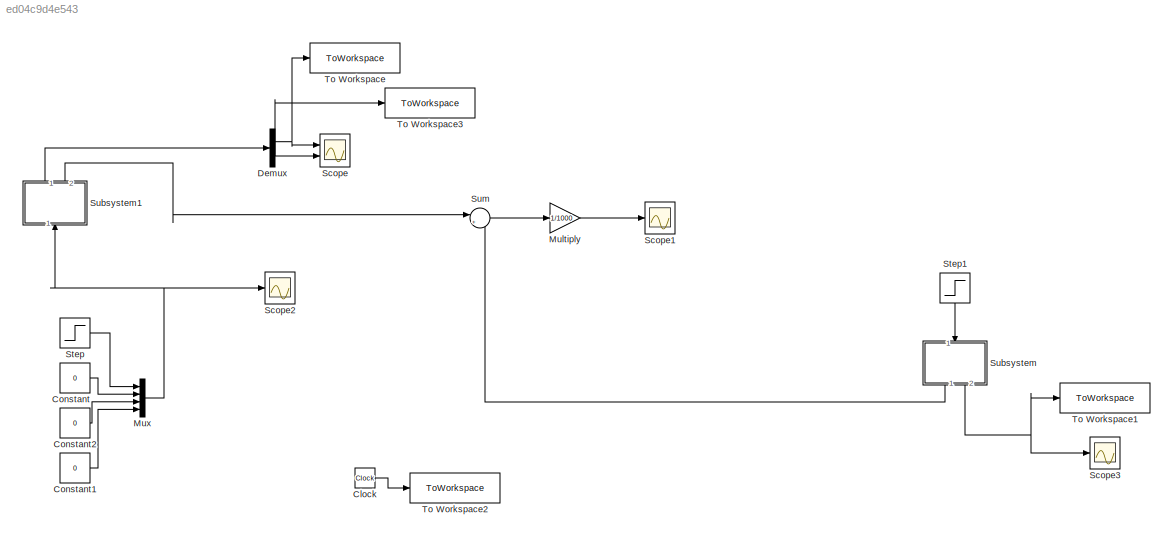
MODEL slx_ed04c9d4e543
KIND model
CONFIG AbsTol = auto
CONFIG EnableMultiTasking = off
CONFIG FixedStep = auto
CONFIG MaxStep = auto
CONFIG MinStep = auto
CONFIG RelTol = 1e-3
CONFIG SampleTimeConstraint = Unconstrained
CONFIG SolverName = ode45
CONFIG StartTime = 0.0
CONFIG StopTime = 5
BLOCK [Clock] Clock
BLOCK [Constant] Constant
  Value = 0
BLOCK [Constant] Constant1
  Value = 0
BLOCK [Constant] Constant2
  Value = 0
BLOCK [Demux] Demux
  Outputs = 2
  Ports = [1, 2]
BLOCK [Gain] Multiply
  Gain = 1/1000
BLOCK [Mux] Mux
  DisplayOption = bar
  Ports = [4, 1]
BLOCK [Scope] Scope
  Floating = off
  NumInputPorts = 2
  Ports = [2]
  ScopeSpecificationString = Simulink.scopes.TimeScopeBlockCfg('CurrentConfiguration', extmgr.ConfigurationSet(extmgr.Configuration('Core','General UI',true),extmgr.Configuration('Core','Source UI',true),extmgr.Configuration('Sources','WiredSimulink',true),extmgr.Configuration('Visuals','Time Domain',true,'SerializedDisplays',{struct('MinYLimReal','-0.1967','MaxYLimReal','1.17696','YLabelReal','','MinYLimMag','0.00000','MaxYL...<+2074ch>
BLOCK [Scope] Scope1
  Floating = off
  NumInputPorts = 1
  Ports = [1]
  ScopeSpecificationString = Simulink.scopes.TimeScopeBlockCfg('CurrentConfiguration', extmgr.ConfigurationSet(extmgr.Configuration('Core','General UI',true),extmgr.Configuration('Core','Source UI',true),extmgr.Configuration('Sources','WiredSimulink',true,'DataLoggingVariableName','ScopeData1'),extmgr.Configuration('Visuals','Time Domain',true,'SerializedDisplays',{struct('MinYLimReal','-5.26045','MaxYLimReal','1.7719','YLabe...<+1394ch>
BLOCK [Scope] Scope2
  Floating = off
  NumInputPorts = 1
  Ports = [1]
  ScopeSpecificationString = Simulink.scopes.TimeScopeBlockCfg('CurrentConfiguration', extmgr.ConfigurationSet(extmgr.Configuration('Core','General UI',true),extmgr.Configuration('Core','Source UI',true),extmgr.Configuration('Sources','WiredSimulink',true,'DataLoggingVariableName','ScopeData1'),extmgr.Configuration('Visuals','Time Domain',true),extmgr.Configuration('Tools','Plot Navigation',true),extmgr.Configuration('Tools',...<+40ch>
BLOCK [Scope] Scope3
  Floating = off
  NumInputPorts = 1
  Ports = [1]
  ScopeSpecificationString = Simulink.scopes.TimeScopeBlockCfg('CurrentConfiguration', extmgr.ConfigurationSet(extmgr.Configuration('Core','General UI',true),extmgr.Configuration('Core','Source UI',true),extmgr.Configuration('Sources','WiredSimulink',true,'DataLoggingVariableName','ScopeData2'),extmgr.Configuration('Visuals','Time Domain',true,'SerializedDisplays',{struct('MinYLimReal','-0.15065','MaxYLimReal','1.35585','YLab...<+1393ch>
BLOCK [Step] Step
  After = X_req
  SampleTime = 0
  Time = 2
BLOCK [Step] Step1
  After = Theta_req
  NameLocation = left
  SampleTime = 0
  Time = 0
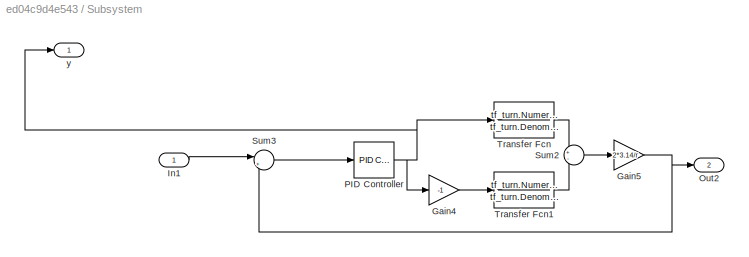
BLOCK [SubSystem] Subsystem
  NameLocation = left
  Ports = [1, 2]
  RequestExecContextInheritance = off
BLOCK [Gain] Subsystem/Gain4
  Gain = -1
BLOCK [Gain] Subsystem/Gain5
  Gain = 2*3.14/r
BLOCK [Inport] Subsystem/In1
BLOCK [Outport] Subsystem/Out2
  Port = 2
BLOCK [Reference] Subsystem/PID Controller  REF=pid_lib/PID Controller
  Ports = [1, 1]
  SourceBlock = pid_lib/PID Controller
  SourceProductBaseCode = SL
  SourceType = PID 1dof
BLOCK [Sum] Subsystem/Sum2
  Inputs = +-
  Ports = [2, 1]
BLOCK [Sum] Subsystem/Sum3
  Inputs = |+-
  Ports = [2, 1]
BLOCK [TransferFcn] Subsystem/Transfer Fcn
  Denominator = tf_turn.Denominator{1,1}
  Numerator = tf_turn.Numerator{1,1}
BLOCK [TransferFcn] Subsystem/Transfer Fcn1
  Denominator = tf_turn.Denominator{1,1}
  Numerator = tf_turn.Numerator{1,1}
BLOCK [Outport] Subsystem/y
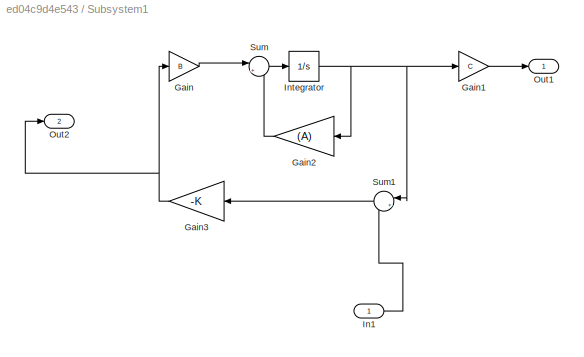
BLOCK [SubSystem] Subsystem1
  NameLocation = right
  Ports = [1, 2]
  RequestExecContextInheritance = off
BLOCK [Gain] Subsystem1/Gain
  Gain = B
  Multiplication = Matrix(K*u)
BLOCK [Gain] Subsystem1/Gain1
  Gain = C
  Multiplication = Matrix(K*u)
BLOCK [Gain] Subsystem1/Gain2
  Gain = (A)
  Multiplication = Matrix(K*u)
  NameLocation = top
BLOCK [Gain] Subsystem1/Gain3
  Gain = -K
  Multiplication = Matrix(K*u)
  NameLocation = top
BLOCK [Inport] Subsystem1/In1
BLOCK [Integrator] Subsystem1/Integrator
  InitialCondition = X0
  Ports = [1, 1]
BLOCK [Outport] Subsystem1/Out1
BLOCK [Outport] Subsystem1/Out2
  Port = 2
BLOCK [Sum] Subsystem1/Sum
  Inputs = |++
  Ports = [2, 1]
BLOCK [Sum] Subsystem1/Sum1
  Inputs = |+-
  NameLocation = top
  Ports = [2, 1]
BLOCK [Sum] Sum
  Inputs = |++
  Ports = [2, 1]
BLOCK [ToWorkspace] To Workspace
  FixptAsFi = on
  MaxDataPoints = inf
  Ports = [1]
  SampleTime = -1
  SaveFormat = Timeseries
  VariableName = R_Pos
BLOCK [ToWorkspace] To Workspace1
  FixptAsFi = on
  MaxDataPoints = inf
  Ports = [1]
  SampleTime = -1
  SaveFormat = Timeseries
  VariableName = Theta_Pos
BLOCK [ToWorkspace] To Workspace2
  FixptAsFi = on
  MaxDataPoints = inf
  Ports = [1]
  SampleTime = -1
  SaveFormat = Timeseries
  VariableName = t
BLOCK [ToWorkspace] To Workspace3
  FixptAsFi = on
  MaxDataPoints = inf
  Ports = [1]
  SampleTime = -1
  SaveFormat = Timeseries
  VariableName = angle
LINE Clock:1 -> To Workspace2:1
LINE Constant1:1 -> Mux:4
LINE Constant2:1 -> Mux:3
LINE Constant:1 -> Mux:2
NET Demux:1 -> Scope:1, To Workspace:1
NET Demux:2 -> Scope:2, To Workspace3:1
LINE Multiply:1 -> Scope1:1
NET Mux:1 -> Scope2:1, Subsystem1:1
LINE Step1:1 -> Subsystem:1
LINE Step:1 -> Mux:1
LINE Subsystem/Gain4:1 -> Subsystem/Transfer Fcn1:1
NET Subsystem/Gain5:1 -> Subsystem/Out2:1, Subsystem/Sum3:2
LINE Subsystem/In1:1 -> Subsystem/Sum3:1
NET Subsystem/PID Controller:1 -> Subsystem/Gain4:1, Subsystem/Transfer Fcn:1, Subsystem/y:1
LINE Subsystem/Sum2:1 -> Subsystem/Gain5:1
LINE Subsystem/Sum3:1 -> Subsystem/PID Controller:1
LINE Subsystem/Transfer Fcn1:1 -> Subsystem/Sum2:2
LINE Subsystem/Transfer Fcn:1 -> Subsystem/Sum2:1
LINE Subsystem1/Gain1:1 -> Subsystem1/Out1:1
LINE Subsystem1/Gain2:1 -> Subsystem1/Sum:2
NET Subsystem1/Gain3:1 -> Subsystem1/Gain:1, Subsystem1/Out2:1
LINE Subsystem1/Gain:1 -> Subsystem1/Sum:1
LINE Subsystem1/In1:1 -> Subsystem1/Sum1:2
NET Subsystem1/Integrator:1 -> Subsystem1/Gain1:1, Subsystem1/Gain2:1, Subsystem1/Sum1:1
LINE Subsystem1/Sum1:1 -> Subsystem1/Gain3:1
LINE Subsystem1/Sum:1 -> Subsystem1/Integrator:1
LINE Subsystem1:1 -> Demux:1
LINE Subsystem1:2 -> Sum:1
LINE Subsystem:1 -> Sum:2
NET Subsystem:2 -> Scope3:1, To Workspace1:1
LINE Sum:1 -> Multiply:1
note: NET lines group one-source signal fan-out (src -> all destinations, sorted); 1:1 wires keep LINE
